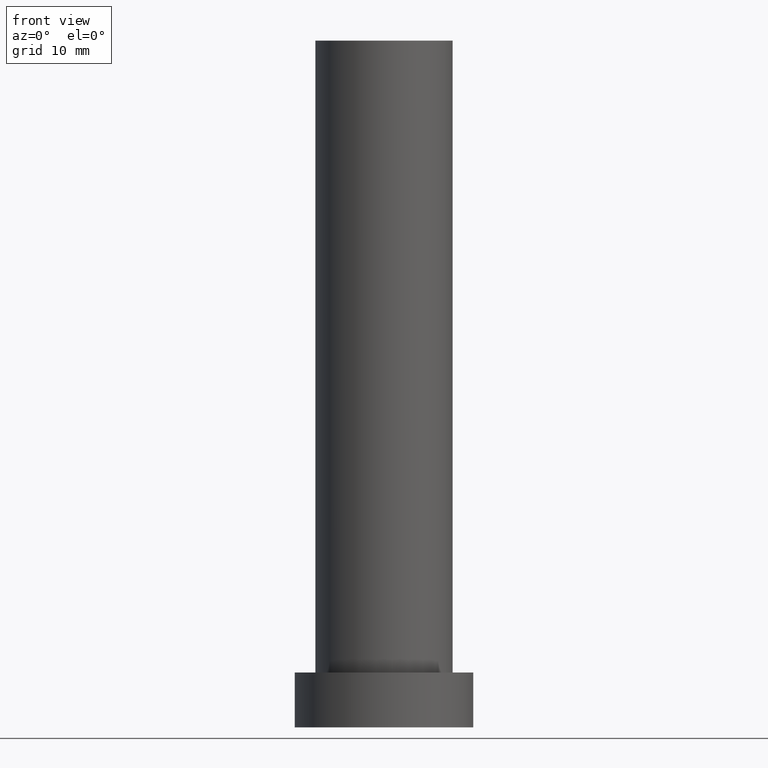
[diagram: clean part render]
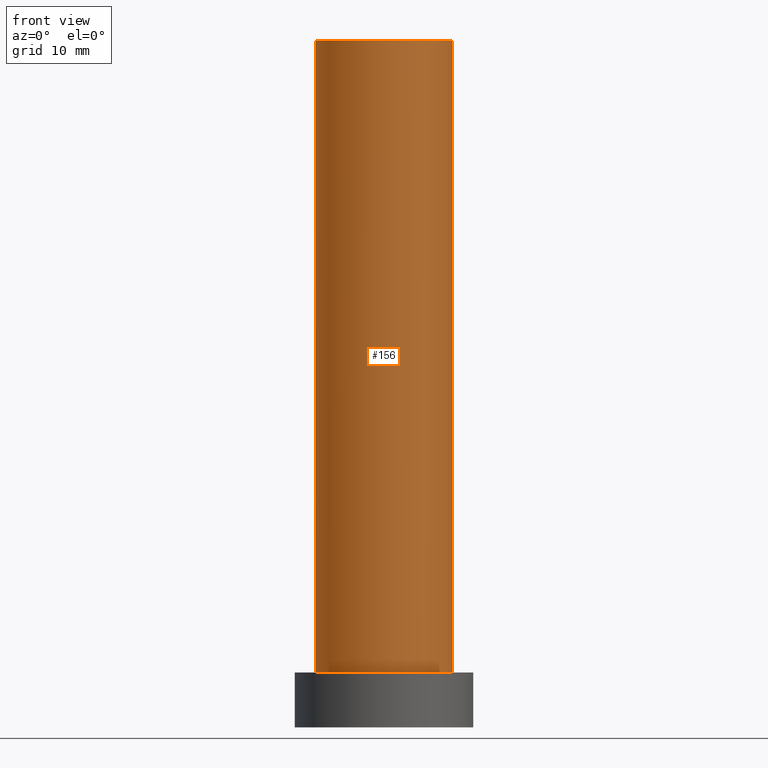
[diagram: same view with one face highlighted and labeled with its STEP entity id]
A machine part, front view. The second image highlights one B-rep face of the part: STEP entity #156.
In plain terms, the highlighted cylindrical surface (partial cylindrical patch) has radius 10 mm, axis along (-0, -0, -1).
Its self-contained STEP definition (entity closure, byte-faithful):
#5 = LINE ( 'NONE', #215, #206 ) ;
#12 = CYLINDRICAL_SURFACE ( 'NONE', #69, 10.00000000000000178 ) ;
#26 = CARTESIAN_POINT ( 'NONE',  ( 0.000000000000000000, 0.000000000000000000, 8.000000000000000000 ) ) ;
#27 = EDGE_CURVE ( 'NONE', #132, #111, #253, .T. ) ;
#32 = CARTESIAN_POINT ( 'NONE',  ( 10.00000000000000178, 1.224646799147353454E-15, 100.0000000000000000 ) ) ;
#45 = EDGE_CURVE ( 'NONE', #111, #113, #5, .T. ) ;
#60 = EDGE_CURVE ( 'NONE', #217, #113, #234, .T. ) ;
#67 = DIRECTION ( 'NONE',  ( -0.000000000000000000, -0.000000000000000000, -1.000000000000000000 ) ) ;
#69 = AXIS2_PLACEMENT_3D ( 'NONE', #151, #147, #222 ) ;
#78 = ORIENTED_EDGE ( 'NONE', *, *, #45, .F. ) ;
#85 = ORIENTED_EDGE ( 'NONE', *, *, #27, .F. ) ;
#96 = AXIS2_PLACEMENT_3D ( 'NONE', #237, #144, #174 ) ;
#99 = DIRECTION ( 'NONE',  ( -0.000000000000000000, -0.000000000000000000, -1.000000000000000000 ) ) ;
#111 = VERTEX_POINT ( 'NONE', #32 ) ;
#112 = ORIENTED_EDGE ( 'NONE', *, *, #159, .T. ) ;
#113 = VERTEX_POINT ( 'NONE', #188 ) ;
#115 = DIRECTION ( 'NONE',  ( 0.000000000000000000, 0.000000000000000000, 1.000000000000000000 ) ) ;
#132 = VERTEX_POINT ( 'NONE', #208 ) ;
#133 = AXIS2_PLACEMENT_3D ( 'NONE', #26, #115, #248 ) ;
#135 = CARTESIAN_POINT ( 'NONE',  ( -10.00000000000000178, 0.000000000000000000, 8.000000000000000000 ) ) ;
#144 = DIRECTION ( 'NONE',  ( 0.000000000000000000, 0.000000000000000000, 1.000000000000000000 ) ) ;
#147 = DIRECTION ( 'NONE',  ( -0.000000000000000000, -0.000000000000000000, -1.000000000000000000 ) ) ;
#150 = VECTOR ( 'NONE', #99, 1000.000000000000000 ) ;
#151 = CARTESIAN_POINT ( 'NONE',  ( 0.000000000000000000, 0.000000000000000000, 100.0000000000000000 ) ) ;
#156 = ADVANCED_FACE ( 'NONE', ( #191 ), #12, .T. ) ;
#159 = EDGE_CURVE ( 'NONE', #132, #217, #167, .T. ) ;
#161 = EDGE_LOOP ( 'NONE', ( #78, #85, #112, #202 ) ) ;
#167 = LINE ( 'NONE', #250, #150 ) ;
#174 = DIRECTION ( 'NONE',  ( 1.000000000000000000, 0.000000000000000000, 0.000000000000000000 ) ) ;
#188 = CARTESIAN_POINT ( 'NONE',  ( 10.00000000000000178, 1.224646799147353454E-15, 8.000000000000000000 ) ) ;
#191 = FACE_OUTER_BOUND ( 'NONE', #161, .T. ) ;
#202 = ORIENTED_EDGE ( 'NONE', *, *, #60, .T. ) ;
#206 = VECTOR ( 'NONE', #67, 1000.000000000000000 ) ;
#208 = CARTESIAN_POINT ( 'NONE',  ( -10.00000000000000178, 0.000000000000000000, 100.0000000000000000 ) ) ;
#215 = CARTESIAN_POINT ( 'NONE',  ( 10.00000000000000178, 1.224646799147353454E-15, 100.0000000000000000 ) ) ;
#217 = VERTEX_POINT ( 'NONE', #135 ) ;
#222 = DIRECTION ( 'NONE',  ( -1.000000000000000000, 0.000000000000000000, 0.000000000000000000 ) ) ;
#234 = CIRCLE ( 'NONE', #133, 10.00000000000000178 ) ;
#237 = CARTESIAN_POINT ( 'NONE',  ( 0.000000000000000000, 0.000000000000000000, 100.0000000000000000 ) ) ;
#248 = DIRECTION ( 'NONE',  ( 1.000000000000000000, 0.000000000000000000, 0.000000000000000000 ) ) ;
#250 = CARTESIAN_POINT ( 'NONE',  ( -10.00000000000000178, 0.000000000000000000, 100.0000000000000000 ) ) ;
#253 = CIRCLE ( 'NONE', #96, 10.00000000000000178 ) ;